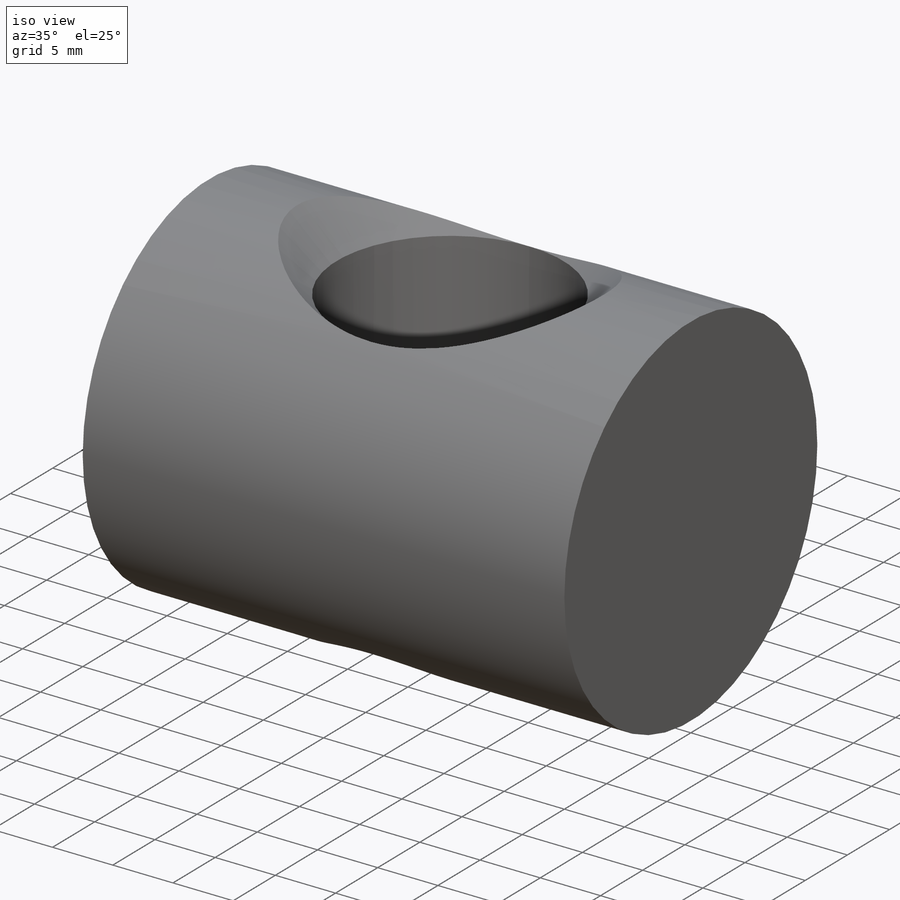
[diagram: iso view]
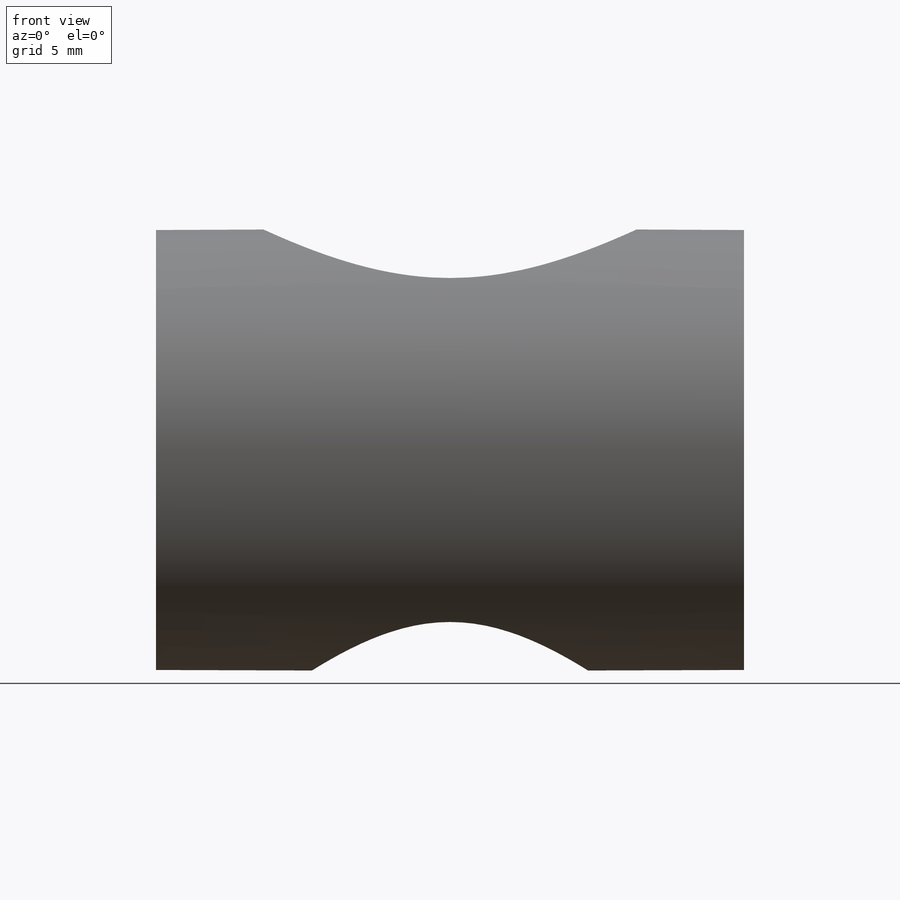
[diagram: front view]
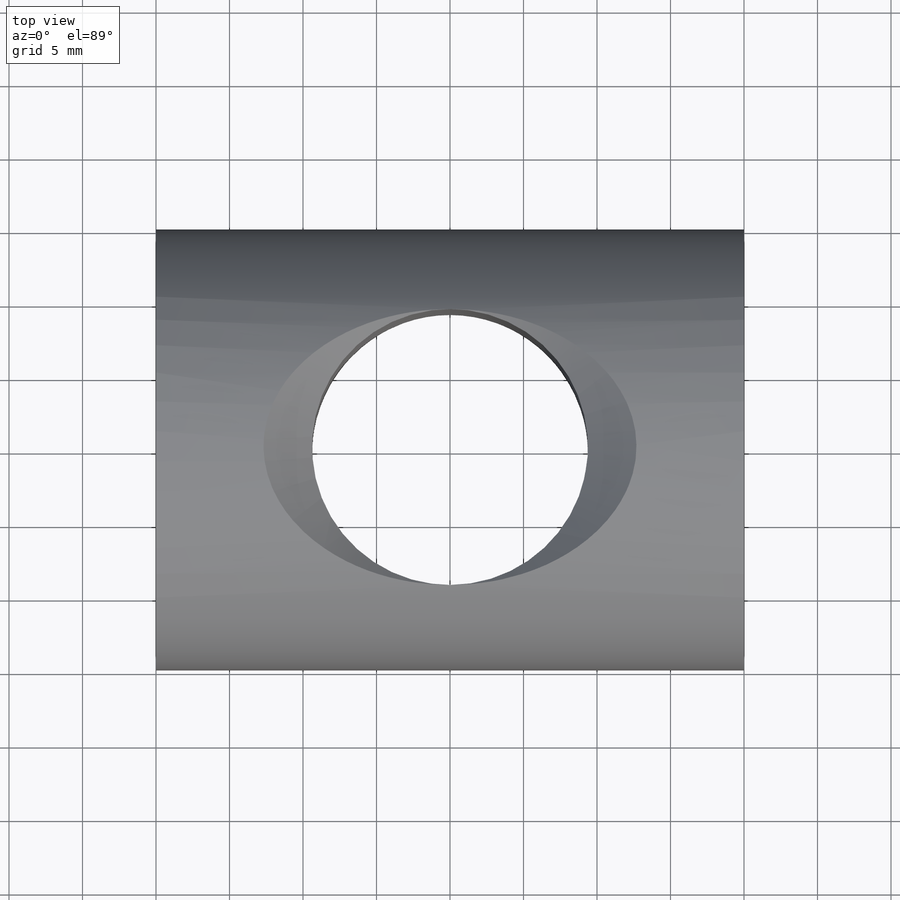
[diagram: top view]
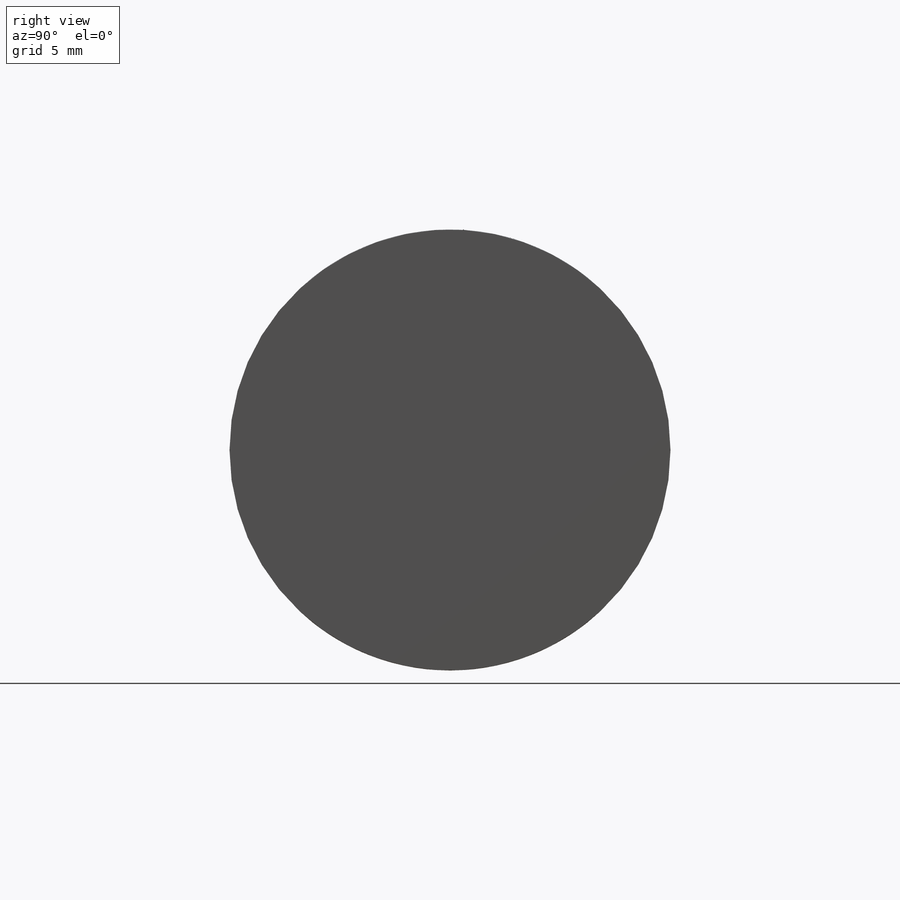
[diagram: right view]
SOLIDWORKS PART (.sldprt)
format: sldprt  version: not decoded by parser v0  size: 160,768 bytes
history: native  units: mm
features: plane x4, sketch x3, material x1, extrude x1, cut_extrude x1, cut_revolve x1 (+10 scaffold rows collapsed)
feature tree (21):
  scaffold x10  (default folders/planes/origin — collapsed)
  material  "Material <not specified>"
  plane  "Płaszczyzna przednia"
  plane  "Płaszczyzna górna"
  plane  "Płaszczyzna prawa"
  sketch  "Szkic1"  dims[D1=~28.680813mm]
  extrude  "Dodanie-wyciągnięcie1"  Depth=40mm
  plane  "Płaszczyzna1"
  sketch  "Sketch1"  dims[D1=~18.770594mm]
  cut_extrude  "Cut-Extrude1"  Depth=23mm
  sketch  "Sketch2"  dims[c1.D1=~31.287596mm c2.D1=45.0deg]
  cut_revolve  "Cut-Revolve1"  Angle=360deg
decode coverage: 6 of 6 modeling features carry decoded parameters
note: ~ marks probable driven/reference dimensions
note: suppression state not decoded; provenance and decode notes live in map.json
